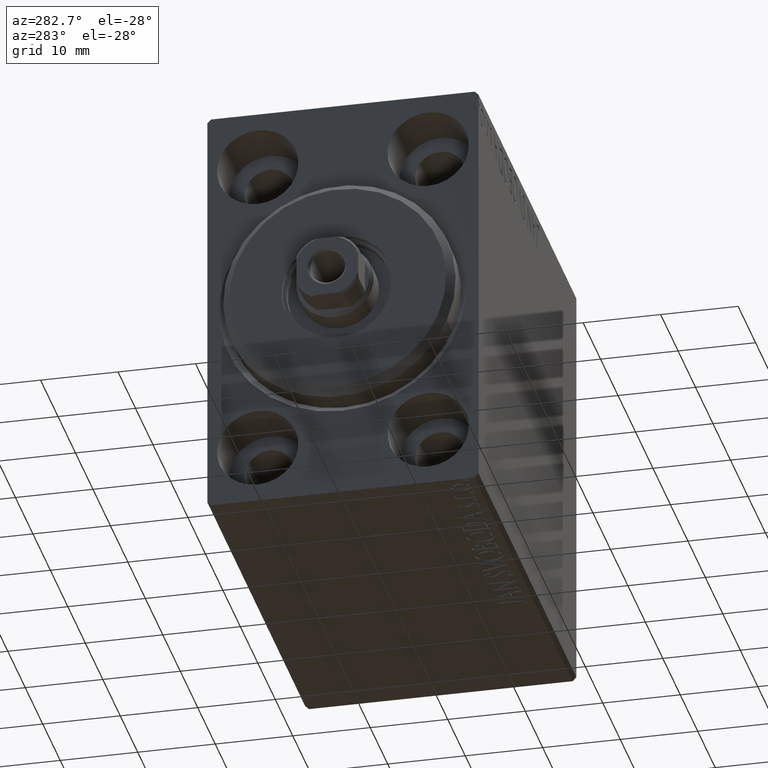
[diagram: clean part render]
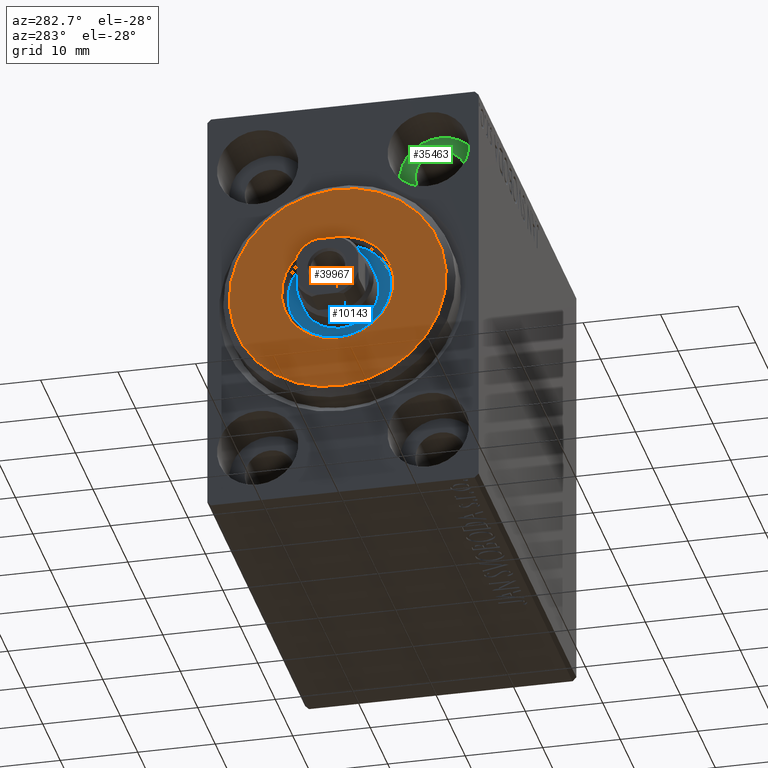
[diagram: same view with three faces highlighted in distinct colors, each labeled with its STEP entity id]
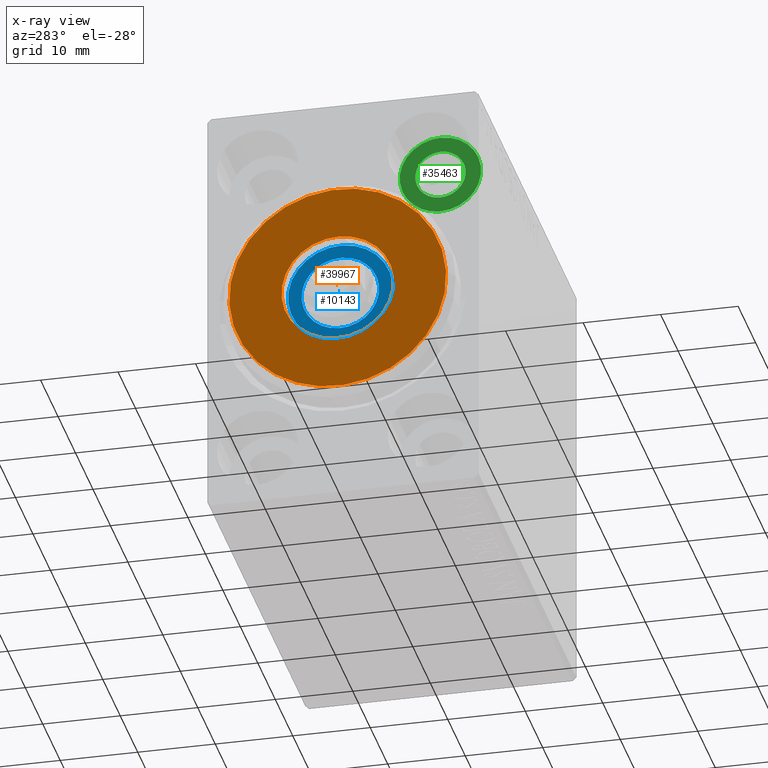
[diagram: x-ray of the same camera — body ghosted, the three highlighted faces saturated]
A machine part, auxiliary view with three faces highlighted in distinct colors.
The next image is the same camera in x-ray (body ghosted, the three faces saturated) — at least one of them is partly hidden behind the body in this view.
Their STEP definitions:

[orange] entity #39967 — the highlighted planar face has unit normal (-1, 0, 0).
#1810 = PLANE ( 'NONE',  #25573 ) ;
#2036 = CARTESIAN_POINT ( 'NONE',  ( 3.000000000000000000, 8.878689293818310074E-16, 7.249999999999999112 ) ) ;
#3061 = ORIENTED_EDGE ( 'NONE', *, *, #13447, .T. ) ;
#4474 = DIRECTION ( 'NONE',  ( 0.000000000000000000, 0.000000000000000000, -1.000000000000000000 ) ) ;
#6161 = ORIENTED_EDGE ( 'NONE', *, *, #39871, .F. ) ;
#6817 = VERTEX_POINT ( 'NONE', #24367 ) ;
#8839 = EDGE_LOOP ( 'NONE', ( #24406, #3061 ) ) ;
#8884 = CARTESIAN_POINT ( 'NONE',  ( 3.000000000000000000, 1.775737858763662015E-15, -13.99999999999999645 ) ) ;
#13447 = EDGE_CURVE ( 'NONE', #27639, #6817, #31033, .T. ) ;
#13546 = AXIS2_PLACEMENT_3D ( 'NONE', #20904, #34437, #4474 ) ;
#14269 = AXIS2_PLACEMENT_3D ( 'NONE', #33688, #43249, #26365 ) ;
#17458 = CARTESIAN_POINT ( 'NONE',  ( 3.000000000000000000, 0.000000000000000000, -7.249999999999999112 ) ) ;
#20902 = EDGE_LOOP ( 'NONE', ( #6161, #21911 ) ) ;
#20904 = CARTESIAN_POINT ( 'NONE',  ( 3.000000000000000000, 0.000000000000000000, 0.000000000000000000 ) ) ;
#21911 = ORIENTED_EDGE ( 'NONE', *, *, #40927, .F. ) ;
#22159 = DIRECTION ( 'NONE',  ( 0.000000000000000000, 0.000000000000000000, -1.000000000000000000 ) ) ;
#22430 = FACE_OUTER_BOUND ( 'NONE', #8839, .T. ) ;
#22643 = FACE_BOUND ( 'NONE', #20902, .T. ) ;
#23987 = CARTESIAN_POINT ( 'NONE',  ( 3.000000000000000000, 0.000000000000000000, 0.000000000000000000 ) ) ;
#24367 = CARTESIAN_POINT ( 'NONE',  ( 3.000000000000000000, 0.000000000000000000, 13.99999999999999645 ) ) ;
#24406 = ORIENTED_EDGE ( 'NONE', *, *, #27912, .T. ) ;
#25045 = DIRECTION ( 'NONE',  ( 1.000000000000000000, -0.000000000000000000, 0.000000000000000000 ) ) ;
#25573 = AXIS2_PLACEMENT_3D ( 'NONE', #39742, #33074, #32190 ) ;
#26365 = DIRECTION ( 'NONE',  ( 0.000000000000000000, 0.000000000000000000, -1.000000000000000000 ) ) ;
#27639 = VERTEX_POINT ( 'NONE', #8884 ) ;
#27722 = CIRCLE ( 'NONE', #14269, 7.249999999999999112 ) ;
#27738 = DIRECTION ( 'NONE',  ( 1.000000000000000000, -0.000000000000000000, 0.000000000000000000 ) ) ;
#27912 = EDGE_CURVE ( 'NONE', #6817, #27639, #39090, .T. ) ;
#28579 = CARTESIAN_POINT ( 'NONE',  ( 3.000000000000000000, 0.000000000000000000, 0.000000000000000000 ) ) ;
#31033 = CIRCLE ( 'NONE', #43099, 13.99999999999999645 ) ;
#31295 = AXIS2_PLACEMENT_3D ( 'NONE', #28579, #25045, #22159 ) ;
#32190 = DIRECTION ( 'NONE',  ( 0.000000000000000000, 0.000000000000000000, -1.000000000000000000 ) ) ;
#32889 = VERTEX_POINT ( 'NONE', #2036 ) ;
#33074 = DIRECTION ( 'NONE',  ( 1.000000000000000000, -0.000000000000000000, 0.000000000000000000 ) ) ;
#33688 = CARTESIAN_POINT ( 'NONE',  ( 3.000000000000000000, 0.000000000000000000, 0.000000000000000000 ) ) ;
#34437 = DIRECTION ( 'NONE',  ( 1.000000000000000000, 0.000000000000000000, 0.000000000000000000 ) ) ;
#35060 = DIRECTION ( 'NONE',  ( 0.000000000000000000, 0.000000000000000000, -1.000000000000000000 ) ) ;
#35587 = CIRCLE ( 'NONE', #13546, 7.249999999999999112 ) ;
#39090 = CIRCLE ( 'NONE', #31295, 13.99999999999999645 ) ;
#39281 = VERTEX_POINT ( 'NONE', #17458 ) ;
#39742 = CARTESIAN_POINT ( 'NONE',  ( 3.000000000000000000, 0.000000000000000000, 0.000000000000000000 ) ) ;
#39871 = EDGE_CURVE ( 'NONE', #39281, #32889, #35587, .T. ) ;
#39967 = ADVANCED_FACE ( 'NONE', ( #22430, #22643 ), #1810, .T. ) ;
#40927 = EDGE_CURVE ( 'NONE', #32889, #39281, #27722, .T. ) ;
#43099 = AXIS2_PLACEMENT_3D ( 'NONE', #23987, #27738, #35060 ) ;
#43249 = DIRECTION ( 'NONE',  ( 1.000000000000000000, 0.000000000000000000, 0.000000000000000000 ) ) ;

[blue] entity #10143 — the highlighted planar face has unit normal (-1, 0, 0).
#128 = DIRECTION ( 'NONE',  ( 1.000000000000000000, 0.000000000000000000, 0.000000000000000000 ) ) ;
#149 = CARTESIAN_POINT ( 'NONE',  ( 1.500000000000000000, 0.000000000000000000, 0.000000000000000000 ) ) ;
#617 = AXIS2_PLACEMENT_3D ( 'NONE', #30507, #128, #13654 ) ;
#1280 = CIRCLE ( 'NONE', #36728, 6.750000000000000000 ) ;
#2628 = CARTESIAN_POINT ( 'NONE',  ( 1.500000000000000000, 0.000000000000000000, 0.000000000000000000 ) ) ;
#4065 = EDGE_CURVE ( 'NONE', #22198, #35844, #4598, .T. ) ;
#4598 = CIRCLE ( 'NONE', #29388, 5.000000000000000000 ) ;
#5508 = DIRECTION ( 'NONE',  ( 0.000000000000000000, 0.000000000000000000, -1.000000000000000000 ) ) ;
#5633 = AXIS2_PLACEMENT_3D ( 'NONE', #2628, #43691, #5508 ) ;
#5647 = VERTEX_POINT ( 'NONE', #28723 ) ;
#6746 = PLANE ( 'NONE',  #33807 ) ;
#7458 = ORIENTED_EDGE ( 'NONE', *, *, #14823, .F. ) ;
#8552 = ORIENTED_EDGE ( 'NONE', *, *, #13188, .T. ) ;
#9375 = DIRECTION ( 'NONE',  ( 0.000000000000000000, 0.000000000000000000, -1.000000000000000000 ) ) ;
#9765 = VERTEX_POINT ( 'NONE', #24856 ) ;
#10143 = ADVANCED_FACE ( 'NONE', ( #34469, #41149 ), #6746, .T. ) ;
#13188 = EDGE_CURVE ( 'NONE', #5647, #9765, #1280, .T. ) ;
#13625 = DIRECTION ( 'NONE',  ( 0.000000000000000000, 0.000000000000000000, -1.000000000000000000 ) ) ;
#13654 = DIRECTION ( 'NONE',  ( 0.000000000000000000, 0.000000000000000000, -1.000000000000000000 ) ) ;
#13672 = DIRECTION ( 'NONE',  ( 1.000000000000000000, 0.000000000000000000, 0.000000000000000000 ) ) ;
#14823 = EDGE_CURVE ( 'NONE', #35844, #22198, #19733, .T. ) ;
#17225 = DIRECTION ( 'NONE',  ( 0.000000000000000000, 0.000000000000000000, -1.000000000000000000 ) ) ;
#19093 = ORIENTED_EDGE ( 'NONE', *, *, #4065, .F. ) ;
#19729 = EDGE_LOOP ( 'NONE', ( #19093, #7458 ) ) ;
#19733 = CIRCLE ( 'NONE', #617, 5.000000000000000000 ) ;
#22096 = EDGE_CURVE ( 'NONE', #9765, #5647, #25497, .T. ) ;
#22198 = VERTEX_POINT ( 'NONE', #33467 ) ;
#24239 = EDGE_LOOP ( 'NONE', ( #8552, #27108 ) ) ;
#24856 = CARTESIAN_POINT ( 'NONE',  ( 1.500000000000000000, 8.266365894244632361E-16, -6.750000000000000000 ) ) ;
#25497 = CIRCLE ( 'NONE', #5633, 6.750000000000000000 ) ;
#27108 = ORIENTED_EDGE ( 'NONE', *, *, #22096, .T. ) ;
#28723 = CARTESIAN_POINT ( 'NONE',  ( 1.500000000000000000, 0.000000000000000000, 6.750000000000000000 ) ) ;
#29388 = AXIS2_PLACEMENT_3D ( 'NONE', #39561, #30010, #9375 ) ;
#30010 = DIRECTION ( 'NONE',  ( 1.000000000000000000, 0.000000000000000000, 0.000000000000000000 ) ) ;
#30507 = CARTESIAN_POINT ( 'NONE',  ( 1.499999999999999556, 0.000000000000000000, 0.000000000000000000 ) ) ;
#33467 = CARTESIAN_POINT ( 'NONE',  ( 1.499999999999999556, 0.000000000000000000, -5.000000000000000000 ) ) ;
#33807 = AXIS2_PLACEMENT_3D ( 'NONE', #34251, #38033, #13625 ) ;
#34251 = CARTESIAN_POINT ( 'NONE',  ( 1.500000000000000000, 0.000000000000000000, 0.000000000000000000 ) ) ;
#34469 = FACE_BOUND ( 'NONE', #19729, .T. ) ;
#34624 = CARTESIAN_POINT ( 'NONE',  ( 1.499999999999999556, 6.123233995736765296E-16, 5.000000000000000000 ) ) ;
#35844 = VERTEX_POINT ( 'NONE', #34624 ) ;
#36728 = AXIS2_PLACEMENT_3D ( 'NONE', #149, #13672, #17225 ) ;
#38033 = DIRECTION ( 'NONE',  ( 1.000000000000000000, 0.000000000000000000, 0.000000000000000000 ) ) ;
#39561 = CARTESIAN_POINT ( 'NONE',  ( 1.499999999999999556, 0.000000000000000000, 0.000000000000000000 ) ) ;
#41149 = FACE_OUTER_BOUND ( 'NONE', #24239, .T. ) ;
#43691 = DIRECTION ( 'NONE',  ( 1.000000000000000000, 0.000000000000000000, 0.000000000000000000 ) ) ;

[green] entity #35463 — the highlighted planar face has unit normal (-1, 0, 0).
#209 = CARTESIAN_POINT ( 'NONE',  ( 6.999999999999999112, -11.00000000000000355, 16.75000000000000000 ) ) ;
#276 = CARTESIAN_POINT ( 'NONE',  ( 7.000000000000000000, -11.00000000000000355, 20.00000000000000000 ) ) ;
#1438 = DIRECTION ( 'NONE',  ( 0.000000000000000000, 0.000000000000000000, 1.000000000000000000 ) ) ;
#1658 = DIRECTION ( 'NONE',  ( -1.000000000000000000, 0.000000000000000000, 0.000000000000000000 ) ) ;
#2979 = CARTESIAN_POINT ( 'NONE',  ( 7.000000000000000000, -11.00000000000000355, 25.25000000000000000 ) ) ;
#5924 = FACE_OUTER_BOUND ( 'NONE', #28998, .T. ) ;
#6773 = DIRECTION ( 'NONE',  ( -1.000000000000000000, 0.000000000000000000, 0.000000000000000000 ) ) ;
#7437 = DIRECTION ( 'NONE',  ( -1.000000000000000000, 0.000000000000000000, 0.000000000000000000 ) ) ;
#7632 = DIRECTION ( 'NONE',  ( 0.000000000000000000, 0.000000000000000000, 1.000000000000000000 ) ) ;
#8585 = VERTEX_POINT ( 'NONE', #2979 ) ;
#9303 = ORIENTED_EDGE ( 'NONE', *, *, #20150, .F. ) ;
#9319 = ORIENTED_EDGE ( 'NONE', *, *, #21008, .T. ) ;
#9359 = AXIS2_PLACEMENT_3D ( 'NONE', #276, #33775, #13583 ) ;
#9699 = DIRECTION ( 'NONE',  ( -1.000000000000000000, 0.000000000000000000, 0.000000000000000000 ) ) ;
#10749 = CIRCLE ( 'NONE', #33444, 3.249999999999999556 ) ;
#10752 = CARTESIAN_POINT ( 'NONE',  ( 6.999999999999999112, -11.00000000000000355, 20.00000000000000000 ) ) ;
#13583 = DIRECTION ( 'NONE',  ( 0.000000000000000000, 0.000000000000000000, 1.000000000000000000 ) ) ;
#14813 = AXIS2_PLACEMENT_3D ( 'NONE', #15623, #1658, #1438 ) ;
#15623 = CARTESIAN_POINT ( 'NONE',  ( 7.000000000000000000, -11.00000000000000355, 20.00000000000000000 ) ) ;
#15666 = EDGE_LOOP ( 'NONE', ( #17773, #9303 ) ) ;
#15839 = CARTESIAN_POINT ( 'NONE',  ( 6.999999999999999112, -11.00000000000000355, 23.25000000000000000 ) ) ;
#16579 = DIRECTION ( 'NONE',  ( 0.000000000000000000, 0.000000000000000000, 1.000000000000000000 ) ) ;
#17773 = ORIENTED_EDGE ( 'NONE', *, *, #42756, .F. ) ;
#20150 = EDGE_CURVE ( 'NONE', #35172, #22679, #20554, .T. ) ;
#20554 = CIRCLE ( 'NONE', #41043, 3.249999999999999556 ) ;
#20981 = DIRECTION ( 'NONE',  ( 0.000000000000000000, 0.000000000000000000, 1.000000000000000000 ) ) ;
#21008 = EDGE_CURVE ( 'NONE', #8585, #43405, #29701, .T. ) ;
#22679 = VERTEX_POINT ( 'NONE', #15839 ) ;
#22787 = PLANE ( 'NONE',  #28409 ) ;
#24317 = CARTESIAN_POINT ( 'NONE',  ( 6.999999999999999112, -11.00000000000000355, 20.00000000000000000 ) ) ;
#25695 = ORIENTED_EDGE ( 'NONE', *, *, #38887, .T. ) ;
#28409 = AXIS2_PLACEMENT_3D ( 'NONE', #40555, #9699, #16579 ) ;
#28998 = EDGE_LOOP ( 'NONE', ( #9319, #25695 ) ) ;
#29701 = CIRCLE ( 'NONE', #14813, 5.250000000000000888 ) ;
#33438 = FACE_BOUND ( 'NONE', #15666, .T. ) ;
#33444 = AXIS2_PLACEMENT_3D ( 'NONE', #24317, #7437, #20981 ) ;
#33775 = DIRECTION ( 'NONE',  ( -1.000000000000000000, 0.000000000000000000, 0.000000000000000000 ) ) ;
#35172 = VERTEX_POINT ( 'NONE', #209 ) ;
#35463 = ADVANCED_FACE ( 'NONE', ( #33438, #5924 ), #22787, .T. ) ;
#37737 = CIRCLE ( 'NONE', #9359, 5.250000000000000888 ) ;
#38887 = EDGE_CURVE ( 'NONE', #43405, #8585, #37737, .T. ) ;
#40439 = CARTESIAN_POINT ( 'NONE',  ( 7.000000000000000000, -11.00000000000000355, 14.75000000000000000 ) ) ;
#40555 = CARTESIAN_POINT ( 'NONE',  ( 7.000000000000000000, 0.000000000000000000, 0.000000000000000000 ) ) ;
#41043 = AXIS2_PLACEMENT_3D ( 'NONE', #10752, #6773, #7632 ) ;
#42756 = EDGE_CURVE ( 'NONE', #22679, #35172, #10749, .T. ) ;
#43405 = VERTEX_POINT ( 'NONE', #40439 ) ;